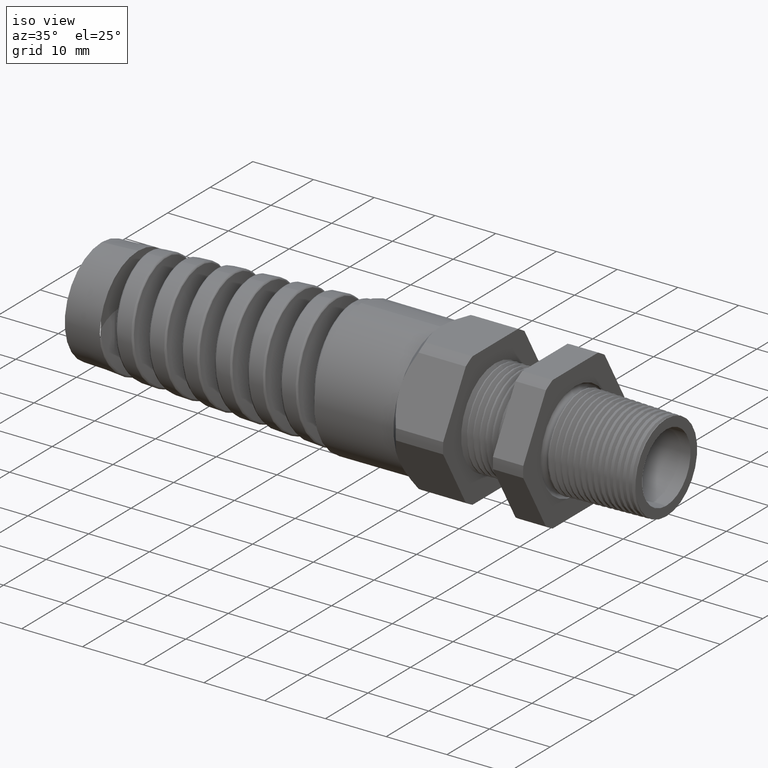
[diagram: clean part render]
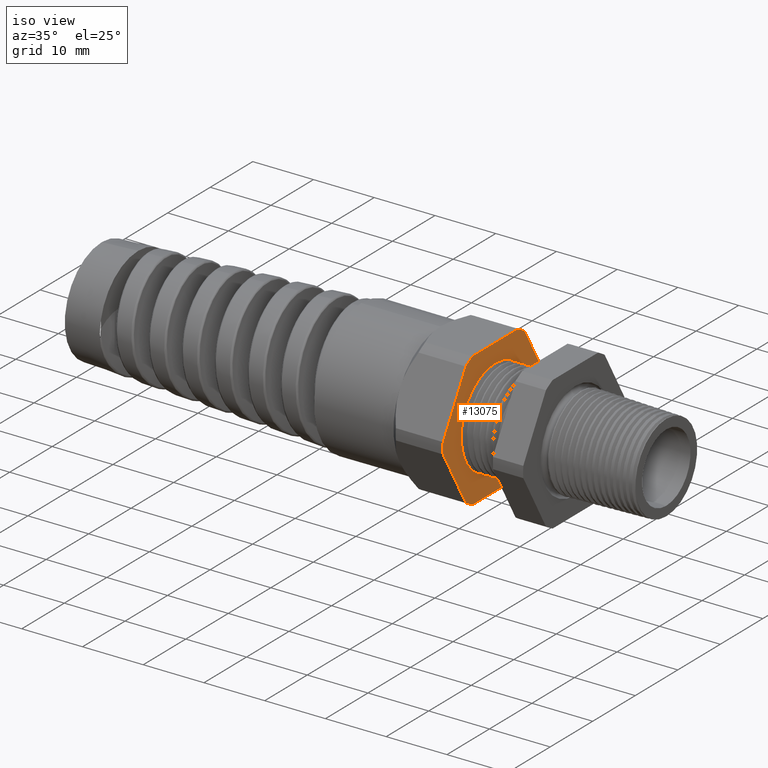
[diagram: same view with one face highlighted and labeled with its STEP entity id]
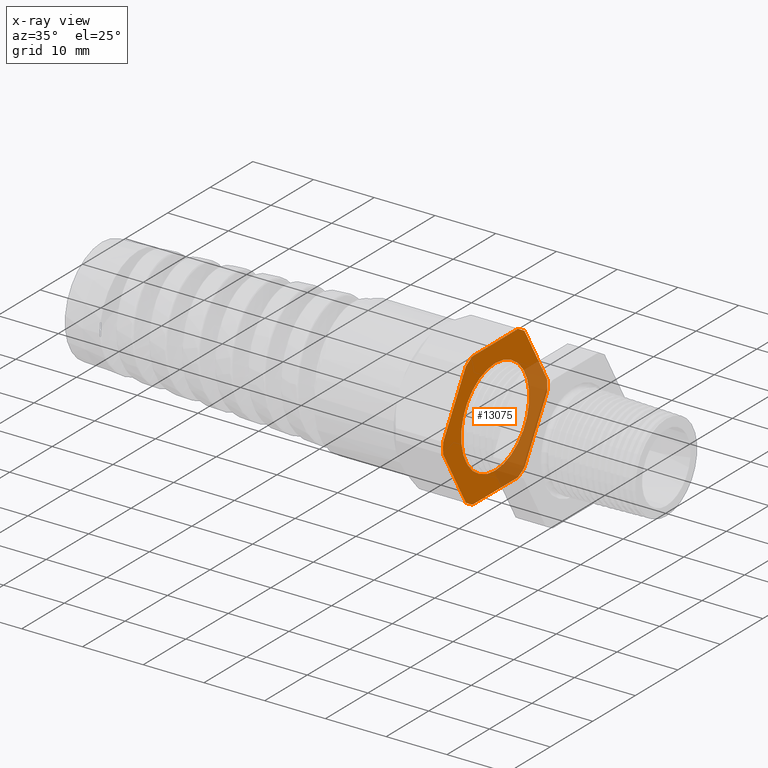
[diagram: x-ray of the same camera — body ghosted, the highlighted face saturated]
A machine part, iso view. The second image highlights one B-rep face of the part: STEP entity #13075.
The next image is the same camera in x-ray: the body ghosted, the highlighted face saturated — about 32% of this face is hidden behind the body in this view.
In plain terms, the highlighted planar face has unit normal (1, 0, 0).
Its self-contained STEP definition (entity closure, byte-faithful):
#4 = EDGE_CURVE ( 'NONE', #14429, #14419, #1605, .T. ) ;
#5 = VERTEX_POINT ( 'NONE', #1601 ) ;
#11 = VERTEX_POINT ( 'NONE', #1594 ) ;
#15 = EDGE_CURVE ( 'NONE', #25, #5, #1649, .T. ) ;
#25 = VERTEX_POINT ( 'NONE', #1629 ) ;
#26 = EDGE_CURVE ( 'NONE', #14419, #25, #1628, .T. ) ;
#31 = VERTEX_POINT ( 'NONE', #1673 ) ;
#32 = EDGE_CURVE ( 'NONE', #5, #31, #1672, .T. ) ;
#45 = EDGE_CURVE ( 'NONE', #31, #46, #1695, .T. ) ;
#46 = VERTEX_POINT ( 'NONE', #1691 ) ;
#64 = EDGE_CURVE ( 'NONE', #46, #11, #1719, .T. ) ;
#824 = EDGE_CURVE ( 'NONE', #851, #825, #9419, .T. ) ;
#825 = VERTEX_POINT ( 'NONE', #10425 ) ;
#851 = VERTEX_POINT ( 'NONE', #10271 ) ;
#1594 = CARTESIAN_POINT ( 'NONE',  ( -0.8293700787401573300, -0.4815054990391102700, 0.03600801154045355600 ) ) ;
#1601 = CARTESIAN_POINT ( 'NONE',  ( -0.8293700787401573300, 0.2095688967857591300, 0.4349999999999998900 ) ) ;
#1602 = DIRECTION ( 'NONE',  ( 0.0000000000000000000, 0.0000000000000000000, -1.000000000000000000 ) ) ;
#1603 = DIRECTION ( 'NONE',  ( 1.000000000000000000, 0.0000000000000000000, 0.0000000000000000000 ) ) ;
#1604 = AXIS2_PLACEMENT_3D ( 'NONE', #1609, #1603, #1602 ) ;
#1605 = CIRCLE ( 'NONE', #1604, 0.4828500000000001700 ) ;
#1609 = CARTESIAN_POINT ( 'NONE',  ( -0.8293700787401573300, 0.0000000000000000000, 0.0000000000000000000 ) ) ;
#1625 = DIRECTION ( 'NONE',  ( 0.0000000000000000000, -0.4999999999999998300, 0.8660254037844386000 ) ) ;
#1626 = VECTOR ( 'NONE', #1625, 39.37007874015748900 ) ;
#1627 = CARTESIAN_POINT ( 'NONE',  ( -0.8293700787401573300, 0.4554710506462308400, 0.08110099890395093500 ) ) ;
#1628 = LINE ( 'NONE', #1627, #1626 ) ;
#1629 = CARTESIAN_POINT ( 'NONE',  ( -0.8293700787401573300, 0.2719366022533515900, 0.3989919884595459800 ) ) ;
#1645 = DIRECTION ( 'NONE',  ( 0.0000000000000000000, 0.0000000000000000000, -1.000000000000000000 ) ) ;
#1646 = DIRECTION ( 'NONE',  ( 1.000000000000000000, 0.0000000000000000000, 0.0000000000000000000 ) ) ;
#1647 = CARTESIAN_POINT ( 'NONE',  ( -0.8293700787401573300, 0.0000000000000000000, 0.0000000000000000000 ) ) ;
#1648 = AXIS2_PLACEMENT_3D ( 'NONE', #1647, #1646, #1645 ) ;
#1649 = CIRCLE ( 'NONE', #1648, 0.4828500000000000000 ) ;
#1669 = DIRECTION ( 'NONE',  ( 0.0000000000000000000, -1.000000000000000000, 0.0000000000000000000 ) ) ;
#1670 = VECTOR ( 'NONE', #1669, 39.37007874015748100 ) ;
#1671 = CARTESIAN_POINT ( 'NONE',  ( -0.8293700787401573300, 0.3150000000000000000, 0.4349999999999998900 ) ) ;
#1672 = LINE ( 'NONE', #1671, #1670 ) ;
#1673 = CARTESIAN_POINT ( 'NONE',  ( -0.8293700787401573300, -0.2095688967857593000, 0.4349999999999997800 ) ) ;
#1691 = CARTESIAN_POINT ( 'NONE',  ( -0.8293700787401573300, -0.2719366022533513700, 0.3989919884595462500 ) ) ;
#1692 = DIRECTION ( 'NONE',  ( 0.0000000000000000000, 0.0000000000000000000, -1.000000000000000000 ) ) ;
#1693 = DIRECTION ( 'NONE',  ( 1.000000000000000000, 0.0000000000000000000, 0.0000000000000000000 ) ) ;
#1694 = AXIS2_PLACEMENT_3D ( 'NONE', #1710, #1693, #1692 ) ;
#1695 = CIRCLE ( 'NONE', #1694, 0.4828500000000000600 ) ;
#1710 = CARTESIAN_POINT ( 'NONE',  ( -0.8293700787401573300, 0.0000000000000000000, 0.0000000000000000000 ) ) ;
#1716 = DIRECTION ( 'NONE',  ( 0.0000000000000000000, -0.4999999999999998300, -0.8660254037844388200 ) ) ;
#1717 = VECTOR ( 'NONE', #1716, 39.37007874015748100 ) ;
#1718 = CARTESIAN_POINT ( 'NONE',  ( -0.8293700787401573300, -0.2979710506462307500, 0.3538990010960488800 ) ) ;
#1719 = LINE ( 'NONE', #1718, #1717 ) ;
#4769 = VERTEX_POINT ( 'NONE', #9044 ) ;
#4777 = VERTEX_POINT ( 'NONE', #9035 ) ;
#4778 = VERTEX_POINT ( 'NONE', #9034 ) ;
#4779 = EDGE_CURVE ( 'NONE', #4981, #4777, #9031, .T. ) ;
#4786 = EDGE_CURVE ( 'NONE', #4777, #4769, #9010, .T. ) ;
#4868 = ORIENTED_EDGE ( 'NONE', *, *, #824, .F. ) ;
#4903 = ORIENTED_EDGE ( 'NONE', *, *, #4909, .T. ) ;
#4904 = ORIENTED_EDGE ( 'NONE', *, *, #4935, .T. ) ;
#4905 = ORIENTED_EDGE ( 'NONE', *, *, #4786, .T. ) ;
#4906 = ORIENTED_EDGE ( 'NONE', *, *, #4779, .T. ) ;
#4909 = EDGE_CURVE ( 'NONE', #4778, #4910, #9047, .T. ) ;
#4910 = VERTEX_POINT ( 'NONE', #9111 ) ;
#4916 = ORIENTED_EDGE ( 'NONE', *, *, #4, .T. ) ;
#4917 = EDGE_LOOP ( 'NONE', ( #4927, #4916, #4924, #4923, #4921, #4922, #4925, #4919, #4906, #4905, #4904, #4903 ) ) ;
#4919 = ORIENTED_EDGE ( 'NONE', *, *, #4995, .T. ) ;
#4921 = ORIENTED_EDGE ( 'NONE', *, *, #32, .T. ) ;
#4922 = ORIENTED_EDGE ( 'NONE', *, *, #45, .T. ) ;
#4923 = ORIENTED_EDGE ( 'NONE', *, *, #15, .T. ) ;
#4924 = ORIENTED_EDGE ( 'NONE', *, *, #26, .T. ) ;
#4925 = ORIENTED_EDGE ( 'NONE', *, *, #64, .T. ) ;
#4927 = ORIENTED_EDGE ( 'NONE', *, *, #4948, .T. ) ;
#4935 = EDGE_CURVE ( 'NONE', #4769, #4778, #9088, .T. ) ;
#4948 = EDGE_CURVE ( 'NONE', #4910, #14429, #9125, .T. ) ;
#4981 = VERTEX_POINT ( 'NONE', #9224 ) ;
#4995 = EDGE_CURVE ( 'NONE', #11, #4981, #9244, .T. ) ;
#9010 = CIRCLE ( 'NONE', #9083, 0.4828500000000000600 ) ;
#9020 = DIRECTION ( 'NONE',  ( 1.000000000000000000, 0.0000000000000000000, 0.0000000000000000000 ) ) ;
#9028 = DIRECTION ( 'NONE',  ( 0.0000000000000000000, 0.5000000000000001100, -0.8660254037844386000 ) ) ;
#9029 = VECTOR ( 'NONE', #9028, 39.37007874015748100 ) ;
#9030 = CARTESIAN_POINT ( 'NONE',  ( -0.8293700787401573300, -0.2979710506462307500, -0.3538990010960491600 ) ) ;
#9031 = LINE ( 'NONE', #9030, #9029 ) ;
#9034 = CARTESIAN_POINT ( 'NONE',  ( -0.8293700787401573300, 0.2095688967857588500, -0.4350000000000000000 ) ) ;
#9035 = CARTESIAN_POINT ( 'NONE',  ( -0.8293700787401573300, -0.2719366022533510900, -0.3989919884595464200 ) ) ;
#9044 = CARTESIAN_POINT ( 'NONE',  ( -0.8293700787401573300, -0.2095688967857587700, -0.4350000000000000500 ) ) ;
#9047 = CIRCLE ( 'NONE', #9115, 0.4828500000000000600 ) ;
#9067 = DIRECTION ( 'NONE',  ( 0.0000000000000000000, 0.0000000000000000000, -1.000000000000000000 ) ) ;
#9069 = DIRECTION ( 'NONE',  ( 1.000000000000000000, 0.0000000000000000000, 0.0000000000000000000 ) ) ;
#9082 = CARTESIAN_POINT ( 'NONE',  ( -0.8293700787401573300, 0.0000000000000000000, 0.0000000000000000000 ) ) ;
#9083 = AXIS2_PLACEMENT_3D ( 'NONE', #9082, #9069, #9067 ) ;
#9088 = LINE ( 'NONE', #9144, #9143 ) ;
#9111 = CARTESIAN_POINT ( 'NONE',  ( -0.8293700787401573300, 0.2719366022533517000, -0.3989919884595459800 ) ) ;
#9112 = DIRECTION ( 'NONE',  ( 0.0000000000000000000, 0.0000000000000000000, -1.000000000000000000 ) ) ;
#9113 = DIRECTION ( 'NONE',  ( 1.000000000000000000, 0.0000000000000000000, 0.0000000000000000000 ) ) ;
#9114 = CARTESIAN_POINT ( 'NONE',  ( -0.8293700787401573300, 0.0000000000000000000, 0.0000000000000000000 ) ) ;
#9115 = AXIS2_PLACEMENT_3D ( 'NONE', #9114, #9113, #9112 ) ;
#9122 = DIRECTION ( 'NONE',  ( 0.0000000000000000000, 0.4999999999999998300, 0.8660254037844386000 ) ) ;
#9123 = VECTOR ( 'NONE', #9122, 39.37007874015748900 ) ;
#9124 = CARTESIAN_POINT ( 'NONE',  ( -0.8293700787401573300, 0.4554710506462308900, -0.08110099890395097700 ) ) ;
#9125 = LINE ( 'NONE', #9124, #9123 ) ;
#9142 = DIRECTION ( 'NONE',  ( 0.0000000000000000000, 1.000000000000000000, 0.0000000000000000000 ) ) ;
#9143 = VECTOR ( 'NONE', #9142, 39.37007874015748100 ) ;
#9144 = CARTESIAN_POINT ( 'NONE',  ( -0.8293700787401573300, 0.3150000000000000000, -0.4350000000000000500 ) ) ;
#9224 = CARTESIAN_POINT ( 'NONE',  ( -0.8293700787401573300, -0.4815054990391102700, -0.03600801154045379900 ) ) ;
#9241 = DIRECTION ( 'NONE',  ( 0.0000000000000000000, 0.0000000000000000000, -1.000000000000000000 ) ) ;
#9242 = DIRECTION ( 'NONE',  ( 1.000000000000000000, 0.0000000000000000000, 0.0000000000000000000 ) ) ;
#9243 = AXIS2_PLACEMENT_3D ( 'NONE', #9250, #9242, #9241 ) ;
#9244 = CIRCLE ( 'NONE', #9243, 0.4828500000000000600 ) ;
#9250 = CARTESIAN_POINT ( 'NONE',  ( -0.8293700787401573300, 0.0000000000000000000, 0.0000000000000000000 ) ) ;
#9378 = DIRECTION ( 'NONE',  ( 0.0000000000000000000, 0.0000000000000000000, -1.000000000000000000 ) ) ;
#9379 = DIRECTION ( 'NONE',  ( 1.000000000000000000, 0.0000000000000000000, 0.0000000000000000000 ) ) ;
#9380 = CARTESIAN_POINT ( 'NONE',  ( -0.8293700787401573300, 0.0000000000000000000, 0.0000000000000000000 ) ) ;
#9381 = AXIS2_PLACEMENT_3D ( 'NONE', #9380, #9379, #9378 ) ;
#9382 = CIRCLE ( 'NONE', #9381, 0.3149999999999998900 ) ;
#9383 = DIRECTION ( 'NONE',  ( 0.0000000000000000000, 0.0000000000000000000, -1.000000000000000000 ) ) ;
#9384 = DIRECTION ( 'NONE',  ( 1.000000000000000000, 0.0000000000000000000, 0.0000000000000000000 ) ) ;
#9385 = CARTESIAN_POINT ( 'NONE',  ( -0.8293700787401573300, 0.3150000000000000000, 0.0000000000000000000 ) ) ;
#9386 = AXIS2_PLACEMENT_3D ( 'NONE', #9385, #9384, #9383 ) ;
#9387 = PLANE ( 'NONE',  #9386 ) ;
#9388 = FACE_OUTER_BOUND ( 'NONE', #4917, .T. ) ;
#9389 = FACE_BOUND ( 'NONE', #13140, .T. ) ;
#9419 = CIRCLE ( 'NONE', #9425, 0.3149999999999998900 ) ;
#9424 = CARTESIAN_POINT ( 'NONE',  ( -0.8293700787401573300, 0.0000000000000000000, 0.0000000000000000000 ) ) ;
#9425 = AXIS2_PLACEMENT_3D ( 'NONE', #9424, #9020, #10426 ) ;
#10125 = CARTESIAN_POINT ( 'NONE',  ( -0.8293700787401573300, 0.4815054990391102700, -0.03600801154045400000 ) ) ;
#10149 = CARTESIAN_POINT ( 'NONE',  ( -0.8293700787401573300, 0.4815054990391102200, 0.03600801154045397300 ) ) ;
#10271 = CARTESIAN_POINT ( 'NONE',  ( -0.8293700787401573300, 3.857637417314162100E-017, -0.3149999999999998900 ) ) ;
#10425 = CARTESIAN_POINT ( 'NONE',  ( -0.8293700787401573300, 0.0000000000000000000, 0.3149999999999998900 ) ) ;
#10426 = DIRECTION ( 'NONE',  ( 0.0000000000000000000, 0.0000000000000000000, -1.000000000000000000 ) ) ;
#13075 = ADVANCED_FACE ( 'NONE', ( #9389, #9388 ), #9387, .T. ) ;
#13133 = ORIENTED_EDGE ( 'NONE', *, *, #13147, .F. ) ;
#13140 = EDGE_LOOP ( 'NONE', ( #13133, #4868 ) ) ;
#13147 = EDGE_CURVE ( 'NONE', #825, #851, #9382, .T. ) ;
#14419 = VERTEX_POINT ( 'NONE', #10149 ) ;
#14429 = VERTEX_POINT ( 'NONE', #10125 ) ;